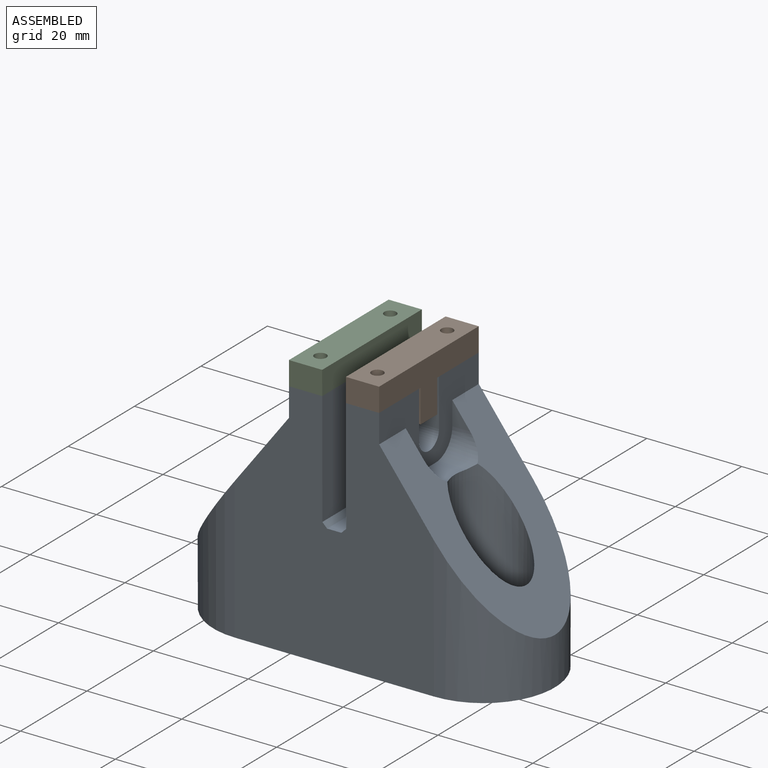
[diagram: assembled view]
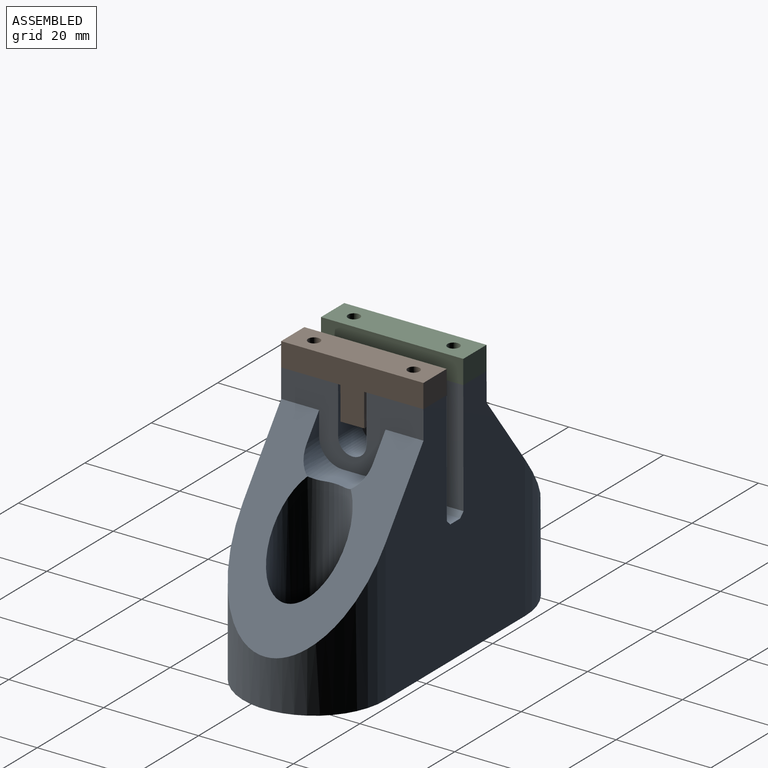
[diagram: assembled view, second angle]
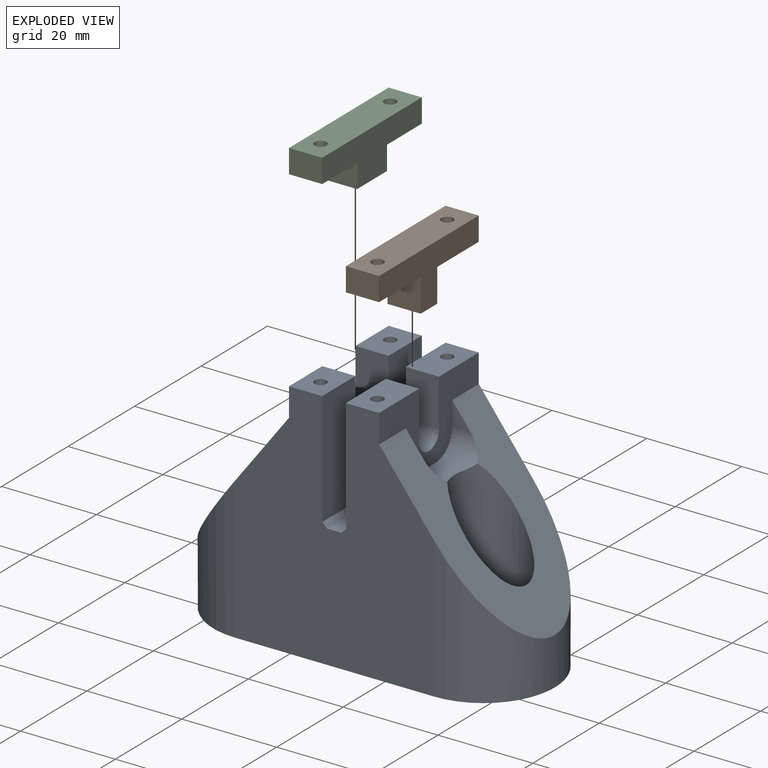
[diagram: exploded view]
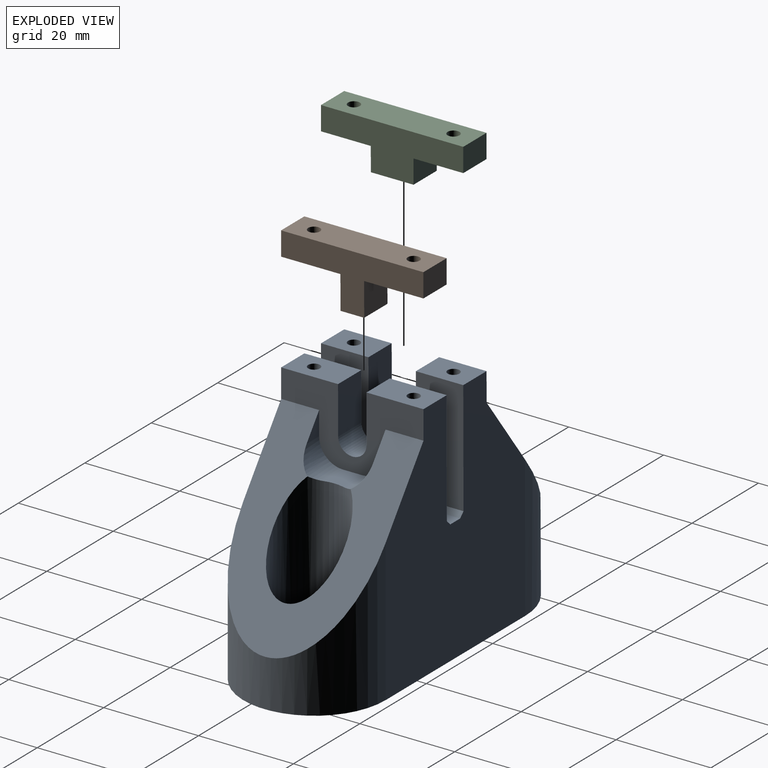
[diagram: exploded view, second angle]
ASSEMBLY  parts=3 mates=2
PART A: 48 faces, bbox 72.5x30.5x51.5 mm
  f0: cylinder r=3.1mm len=10mm, axis (0,0,-1), area 194.8mm2, adj f13,f38
  f1: cylinder r=3.1mm len=10mm, axis (0,0,-1), area 194.8mm2, adj f13,f37
  f2: plane 35.39x30.39mm, normal (-0.8,0,0.6), area 687.9mm2, adj f11,f12,f18,f30,f31,f32,f33,f34
  f3: plane 35.5x30.5mm, normal (0.8,0,0.6), area 724.5mm2, adj f11,f12,f14,f24,f26,f27,f28,f35
  f4: plane 10x7mm, normal (0,1,0), area 70mm2, adj f6,f8,f14,f15
  f5: plane 10x7mm, normal (0,-1,0), area 70mm2, adj f6,f7,f8,f14
  f6: cylinder r=3mm len=7mm, axis (1,0,0), area 66mm2, adj f4,f5,f8,f14
  f7: plane 12x7mm, normal (0,0,1), area 79.1mm2, adj f5,f8,f12,f14,f46
  f8: plane 30x24mm, normal (-1,0,0), area 645.9mm2, adj f4,f5,f6,f7,f11,f12,f15,f23
  f9: plane 30x24mm, normal (1,0,0), area 580.7mm2, adj f10,f11,f12,f17,f19,f20,f21,f22
  f10: plane 10x7mm, normal (0,0,1), area 65.1mm2, adj f9,f11,f18,f20,f44
  f11: plane 51x42mm, normal (0,-1,0), area 1705.3mm2, adj f2,f3,f8,f9,f10,f13,f14,f15
  f12: plane 51x42mm, normal (0,1,0), area 1705.3mm2, adj f2,f3,f7,f8,f9,f13,f14,f16
  f13: plane 72x30mm, normal (0,0,-1), area 1906.5mm2, adj f0,f1,f11,f12,f34,f35
  f14: plane 30x16mm, normal (1,0,0), area 235.1mm2, adj f3,f4,f5,f6,f7,f11,f12,f15
  f15: plane 12x7mm, normal (0,0,1), area 79.1mm2, adj f4,f8,f11,f14,f42
  f16: plane 30x3mm, normal (0,0,1), area 90mm2, adj f11,f12,f22,f23
  f17: plane 10x7mm, normal (0,0,1), area 65.1mm2, adj f9,f12,f18,f19,f40
  f18: plane 30x18mm, normal (-1,0,0), area 222mm2, adj f2,f10,f11,f12,f17,f19,f20,f21
  f19: plane 10x7mm, normal (0,-1,0), area 70mm2, adj f9,f17,f18,f21
  f20: plane 10x7mm, normal (0,1,0), area 70mm2, adj f9,f10,f18,f21
  f21: cylinder r=5mm len=10mm, axis (-1,0,0), area 110mm2, adj f9,f18,f19,f20
  f22: plane 30x1mm, normal (0.71,0,0.71), area 42.4mm2, adj f9,f11,f12,f16
  f23: plane 30x1mm, normal (-0.71,0,0.71), area 42.4mm2, adj f8,f11,f12,f16
  f24: cylinder r=5mm len=7.04mm, axis (1,0,0), area 45.2mm2, adj f3,f14,f25,f28,f39
  f25: plane 5.77x4mm, normal (0,0,1), area 22.4mm2, adj f14,f24,f26,f39
  f26: cylinder r=5mm len=7.04mm, axis (1,0,0), area 45.2mm2, adj f3,f14,f25,f27,f39
  f27: plane 5x3.79mm, normal (0,-1,0), area 9.5mm2, adj f3,f14,f26
  f28: plane 5x3.79mm, normal (0,1,0), area 9.5mm2, adj f3,f14,f24
  f29: plane 6.13x6mm, normal (0,0,1), area 34.2mm2, adj f18,f30,f32,f36
  f30: cylinder r=5mm len=8.38mm, axis (-1,0,0), area 55mm2, adj f2,f18,f29,f31,f36
  f31: plane 7x5.3mm, normal (0,1,0), area 18.6mm2, adj f2,f18,f30
  f32: cylinder r=5mm len=8.38mm, axis (-1,0,0), area 55mm2, adj f2,f18,f29,f33,f36
  f33: plane 7x5.3mm, normal (0,-1,0), area 18.6mm2, adj f2,f18,f32
  f34: cylinder r=15mm len=30mm, axis (0,0,1), area 810.5mm2, adj f2,f11,f12,f13
  f35: cylinder r=15mm len=30mm, axis (0,0,-1), area 810.5mm2, adj f3,f11,f12,f13
  f36: cylinder r=7.5mm len=23.93mm, axis (0,0,1), area 797mm2, adj f2,f29,f30,f32,f37
  f37: plane 15x15mm, normal (0,0,1), area 146.5mm2, adj f1,f36
  f38: plane 15x15mm, normal (0,0,1), area 146.5mm2, adj f0,f39
  f39: cylinder r=7.5mm len=25.7mm, axis (0,0,1), area 822.2mm2, adj f3,f24,f25,f26,f38
  f40: cylinder r=1.25mm len=25mm, axis (0,0,1), area 196.3mm2, adj f17,f41
  f41: plane 2.5x2.5mm, normal (0,0,1), area 4.9mm2, adj f40
  f42: cylinder r=1.25mm len=25mm, axis (0,0,1), area 196.3mm2, adj f15,f43
  f43: plane 2.5x2.5mm, normal (0,0,1), area 4.9mm2, adj f42
  f44: cylinder r=1.25mm len=25mm, axis (0,0,1), area 196.3mm2, adj f10,f45
  f45: plane 2.5x2.5mm, normal (0,0,1), area 4.9mm2, adj f44
  f46: cylinder r=1.25mm len=25mm, axis (0,0,1), area 196.3mm2, adj f7,f47
  f47: plane 2.5x2.5mm, normal (0,0,1), area 4.9mm2, adj f46
PART B: 12 faces, bbox 7x30x12 mm
  f0: plane 12.5x7mm, normal (0,0,1), area 82.6mm2, adj f1,f7,f8,f9,f11
  f1: plane 7x5mm, normal (0,-1,0), area 35mm2, adj f0,f2,f8,f9
  f2: plane 30x7mm, normal (0,0,-1), area 200.2mm2, adj f1,f3,f8,f9,f10,f11
  f3: plane 7x5mm, normal (0,1,0), area 35mm2, adj f2,f4,f8,f9
  f4: plane 12.5x7mm, normal (0,0,1), area 82.6mm2, adj f3,f5,f8,f9,f10
  f5: plane 7x7mm, normal (0,1,0), area 49mm2, adj f4,f6,f8,f9
  f6: plane 7x5mm, normal (0,0,1), area 35mm2, adj f5,f7,f8,f9
  f7: plane 7x7mm, normal (0,-1,0), area 49mm2, adj f0,f6,f8,f9
  f8: plane 30x12mm, normal (1,0,0), area 185mm2, adj f0,f1,f2,f3,f4,f5,f6,f7
  f9: plane 30x12mm, normal (-1,0,0), area 185mm2, adj f0,f1,f2,f3,f4,f5,f6,f7
  f10: cylinder r=1.25mm len=5mm, axis (0,0,-1), area 39.3mm2, adj f2,f4
  f11: cylinder r=1.25mm len=5mm, axis (0,0,-1), area 39.3mm2, adj f0,f2
PART C: 12 faces, bbox 7x30x10 mm
  f0: plane 10.5x7mm, normal (0,0,1), area 68.6mm2, adj f1,f7,f8,f9,f11
  f1: plane 7x5mm, normal (0,-1,0), area 35mm2, adj f0,f2,f8,f9
  f2: plane 30x7mm, normal (0,0,-1), area 200.2mm2, adj f1,f3,f8,f9,f10,f11
  f3: plane 7x5mm, normal (0,1,0), area 35mm2, adj f2,f4,f8,f9
  f4: plane 10.5x7mm, normal (0,0,1), area 68.6mm2, adj f3,f5,f8,f9,f10
  f5: plane 7x5mm, normal (0,1,0), area 35mm2, adj f4,f6,f8,f9
  f6: plane 9x7mm, normal (0,0,1), area 63mm2, adj f5,f7,f8,f9
  f7: plane 7x5mm, normal (0,-1,0), area 35mm2, adj f0,f6,f8,f9
  f8: plane 30x10mm, normal (1,0,0), area 195mm2, adj f0,f1,f2,f3,f4,f5,f6,f7
  f9: plane 30x10mm, normal (-1,0,0), area 195mm2, adj f0,f1,f2,f3,f4,f5,f6,f7
  f10: cylinder r=1.25mm len=5mm, axis (0,0,-1), area 39.3mm2, adj f2,f4
  f11: cylinder r=1.25mm len=5mm, axis (0,0,-1), area 39.3mm2, adj f0,f2
PLACE A rot(axis=(1,0,0),0.1deg) t=(11.18,-15.02,-13.5)mm
PLACE B rot(axis=(-1,0,0),179.9deg) t=(13.68,-15.13,42.5)mm
PLACE C rot(axis=(0,-1,0),180deg) t=(8.68,-15.13,42.5)mm
MATE fastened A.f44 <-> C.f11  axis (0,0,1) through (5.18,-25.62,37.48)mm
MATE fastened A.f42 <-> B.f10  axis (0,0,1) through (17.18,-25.62,37.48)mm
